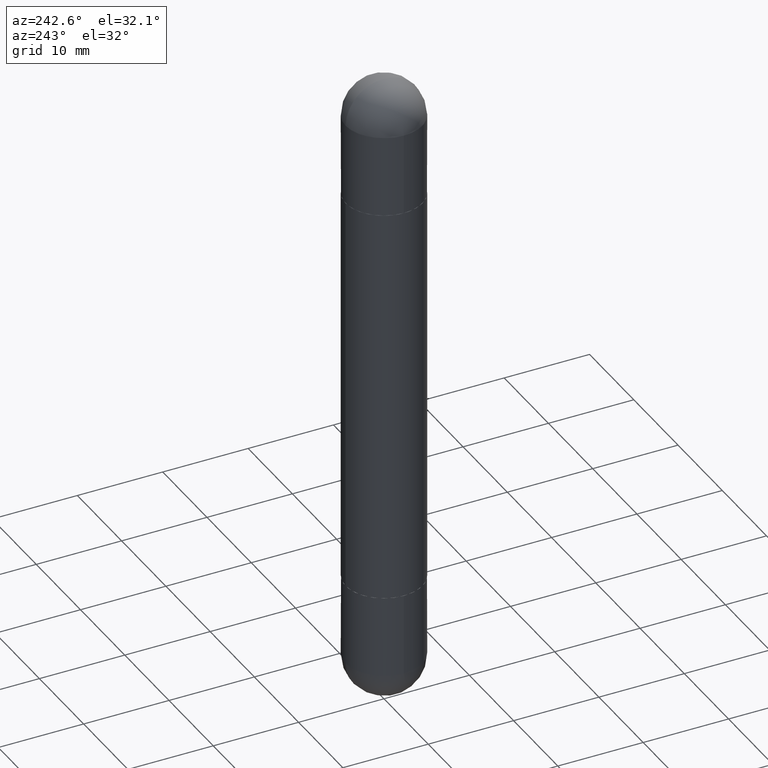
[diagram: clean part render]
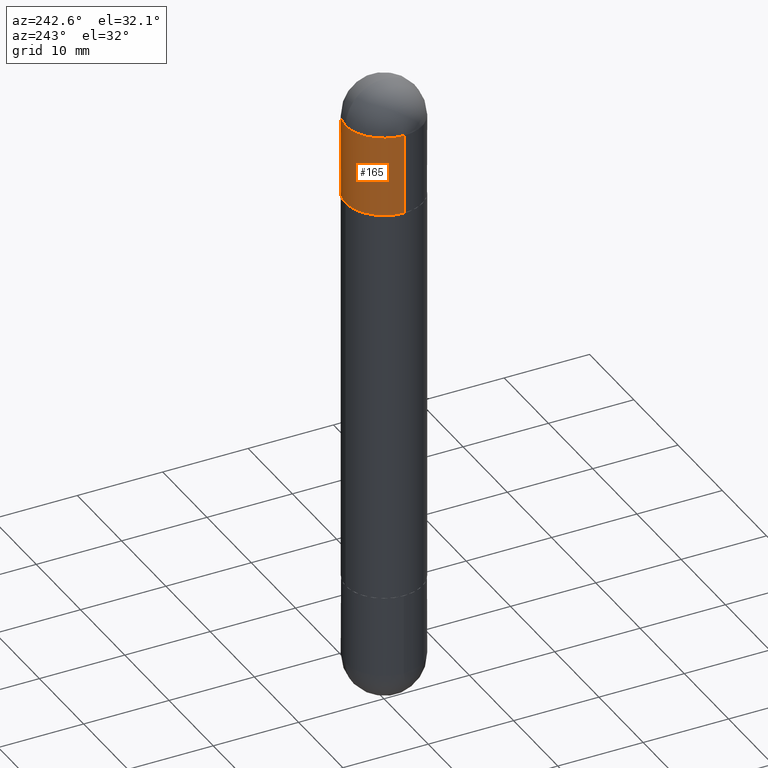
[diagram: same view with one face highlighted and labeled with its STEP entity id]
A machine part, auxiliary view. The second image highlights one B-rep face of the part: STEP entity #165.
In plain terms, the highlighted cylindrical surface (partial cylindrical patch) has radius 4.4996 mm, axis along (-0, 0, -1).
Its self-contained STEP definition (entity closure, byte-faithful):
#12 = DIRECTION ( 'NONE',  ( -2.445468806185136877E-29, 3.491481338843145188E-15, -1.000000000000000000 ) ) ;
#17 = CYLINDRICAL_SURFACE ( 'NONE', #97, 0.1771500000000000019 ) ;
#33 = CARTESIAN_POINT ( 'NONE',  ( 0.1771500000000000019, -9.622173421717819657E-15, -0.5512000000000001343 ) ) ;
#39 = CIRCLE ( 'NONE', #736, 0.1771500000000000019 ) ;
#55 = DIRECTION ( 'NONE',  ( 1.000000000000000000, -6.982962677686272233E-15, 0.000000000000000000 ) ) ;
#91 = DIRECTION ( 'NONE',  ( 1.000000000000000000, -6.982962677686266711E-15, 0.000000000000000000 ) ) ;
#96 = DIRECTION ( 'NONE',  ( -2.445468806185136597E-29, 3.491481338843145583E-15, -1.000000000000000000 ) ) ;
#97 = AXIS2_PLACEMENT_3D ( 'NONE', #717, #96, #91 ) ;
#104 = ORIENTED_EDGE ( 'NONE', *, *, #247, .F. ) ;
#105 = EDGE_LOOP ( 'NONE', ( #104, #463, #665, #198, #499 ) ) ;
#147 = VERTEX_POINT ( 'NONE', #592 ) ;
#162 = DIRECTION ( 'NONE',  ( 2.445468806185136597E-29, -3.491481338843145583E-15, 1.000000000000000000 ) ) ;
#165 = ADVANCED_FACE ( 'NONE', ( #707 ), #17, .T. ) ;
#187 = EDGE_CURVE ( 'NONE', #504, #797, #698, .T. ) ;
#188 = CARTESIAN_POINT ( 'NONE',  ( 6.787765491887772680E-29, -9.691130178159974964E-15, -0.1771500000000000574 ) ) ;
#198 = ORIENTED_EDGE ( 'NONE', *, *, #273, .T. ) ;
#223 = LINE ( 'NONE', #391, #373 ) ;
#238 = VERTEX_POINT ( 'NONE', #533 ) ;
#247 = EDGE_CURVE ( 'NONE', #797, #238, #223, .T. ) ;
#249 = CARTESIAN_POINT ( 'NONE',  ( 1.237031838352189250E-15, 0.1771499999999902042, -0.1771499999999994468 ) ) ;
#273 = EDGE_CURVE ( 'NONE', #147, #796, #590, .T. ) ;
#348 = CARTESIAN_POINT ( 'NONE',  ( -0.1771500000000000019, -7.822798660457609805E-15, -0.1771500000000000574 ) ) ;
#361 = DIRECTION ( 'NONE',  ( 2.445468806185136597E-29, -3.491481338843145583E-15, 1.000000000000000000 ) ) ;
#366 = DIRECTION ( 'NONE',  ( 1.000000000000000000, -6.982962677686272233E-15, 0.000000000000000000 ) ) ;
#373 = VECTOR ( 'NONE', #12, 39.37007874015748143 ) ;
#387 = DIRECTION ( 'NONE',  ( 1.000000000000000000, -6.982962677686266711E-15, 0.000000000000000000 ) ) ;
#389 = CIRCLE ( 'NONE', #610, 0.1771500000000000019 ) ;
#391 = CARTESIAN_POINT ( 'NONE',  ( -0.1771500000000000019, 1.215337220305226901E-15, -2.952799999999999869 ) ) ;
#398 = DIRECTION ( 'NONE',  ( 2.445468806185136597E-29, -3.491481338843145583E-15, 1.000000000000000000 ) ) ;
#452 = AXIS2_PLACEMENT_3D ( 'NONE', #606, #162, #366 ) ;
#457 = DIRECTION ( 'NONE',  ( -2.445468806185136877E-29, 3.491481338843145188E-15, -1.000000000000000000 ) ) ;
#463 = ORIENTED_EDGE ( 'NONE', *, *, #187, .F. ) ;
#499 = ORIENTED_EDGE ( 'NONE', *, *, #649, .T. ) ;
#504 = VERTEX_POINT ( 'NONE', #249 ) ;
#533 = CARTESIAN_POINT ( 'NONE',  ( -0.1771500000000000019, -7.822798660457608227E-15, -0.5512000000000001343 ) ) ;
#580 = EDGE_CURVE ( 'NONE', #147, #504, #389, .T. ) ;
#590 = LINE ( 'NONE', #770, #712 ) ;
#592 = CARTESIAN_POINT ( 'NONE',  ( 0.1771500000000000019, -1.027516771911496009E-14, -0.1771500000000000574 ) ) ;
#606 = CARTESIAN_POINT ( 'NONE',  ( 6.787765491887772680E-29, -9.691130178159974964E-15, -0.1771500000000000574 ) ) ;
#610 = AXIS2_PLACEMENT_3D ( 'NONE', #188, #361, #55 ) ;
#649 = EDGE_CURVE ( 'NONE', #796, #238, #39, .T. ) ;
#665 = ORIENTED_EDGE ( 'NONE', *, *, #580, .F. ) ;
#698 = CIRCLE ( 'NONE', #452, 0.1771500000000000019 ) ;
#707 = FACE_OUTER_BOUND ( 'NONE', #105, .T. ) ;
#712 = VECTOR ( 'NONE', #457, 39.37007874015748143 ) ;
#717 = CARTESIAN_POINT ( 'NONE',  ( 0.000000000000000000, 0.000000000000000000, -2.952799999999999869 ) ) ;
#736 = AXIS2_PLACEMENT_3D ( 'NONE', #818, #398, #387 ) ;
#770 = CARTESIAN_POINT ( 'NONE',  ( 0.1771500000000000019, -1.237031838352122197E-15, -2.952799999999999869 ) ) ;
#796 = VERTEX_POINT ( 'NONE', #33 ) ;
#797 = VERTEX_POINT ( 'NONE', #348 ) ;
#818 = CARTESIAN_POINT ( 'NONE',  ( 5.873037884934223228E-29, -8.385141583365697263E-15, -0.5512000000000001343 ) ) ;